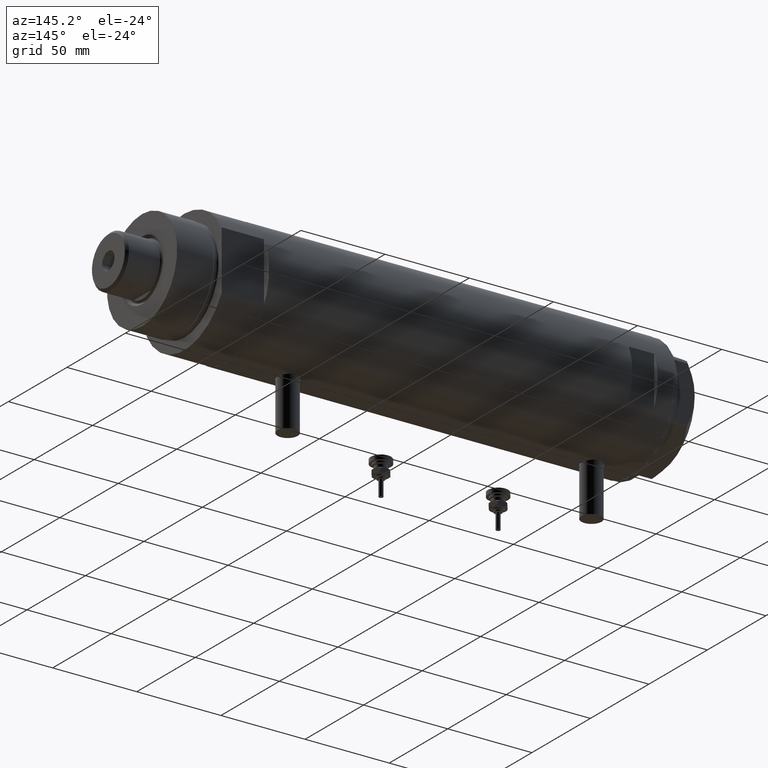
[diagram: clean part render]
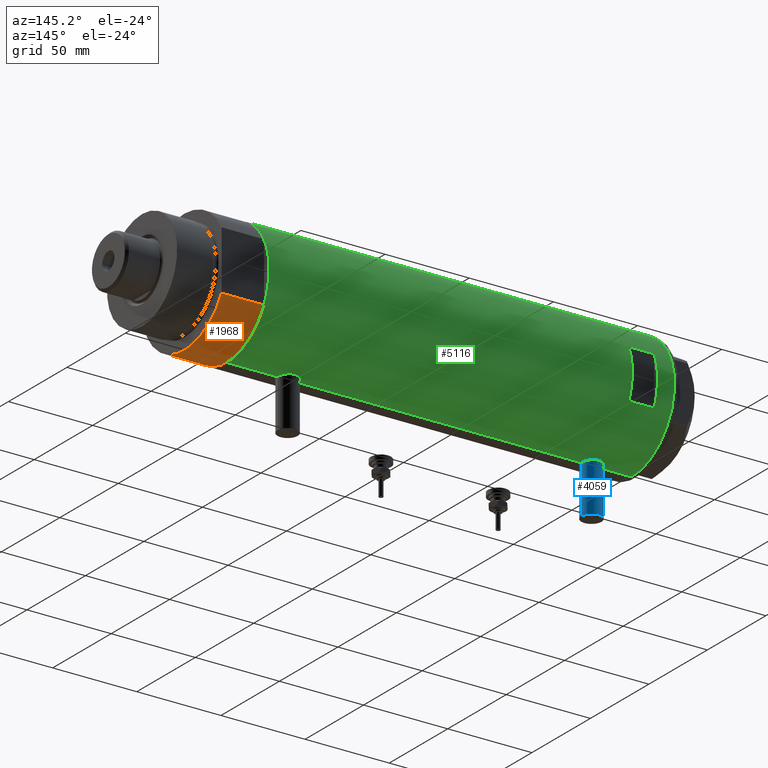
[diagram: same view with three faces highlighted in distinct colors, each labeled with its STEP entity id]
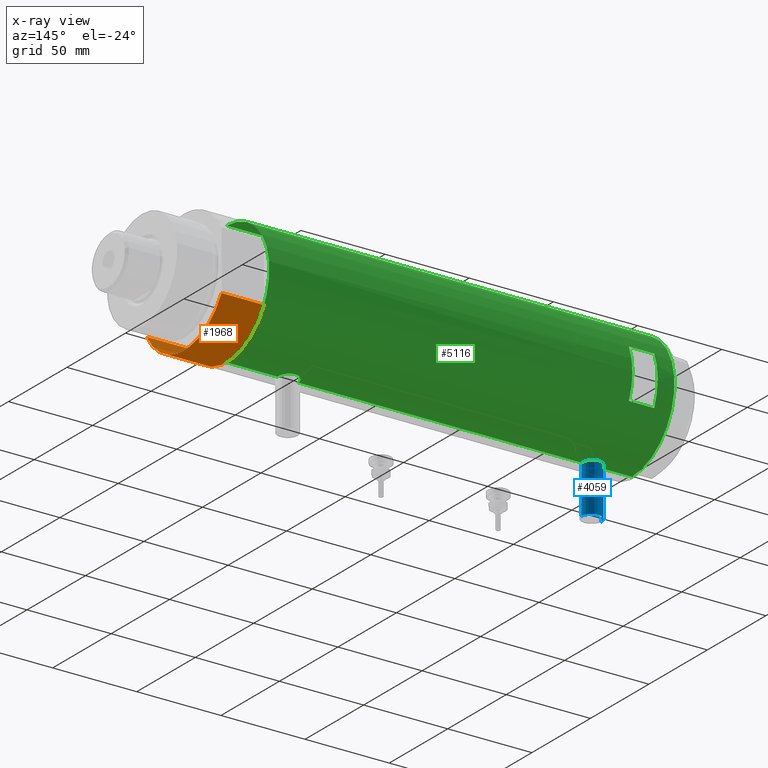
[diagram: x-ray of the same camera — body ghosted, the three highlighted faces saturated]
A machine part, auxiliary view with three faces highlighted in distinct colors.
The next image is the same camera in x-ray (body ghosted, the three faces saturated) — at least one of them is partly hidden behind the body in this view.
Their STEP definitions:

[orange] entity #1968 — the highlighted cylindrical surface (partial cylindrical patch) has radius 36.5 mm, axis along (-1, -0, 0).
#426 = CARTESIAN_POINT ( 'NONE',  ( 17.55704986607943496, 32.00000000000000000, 0.000000000000000000 ) ) ;
#515 = CIRCLE ( 'NONE', #5792, 36.50000000000000000 ) ;
#668 = DIRECTION ( 'NONE',  ( 0.000000000000000000, 0.000000000000000000, 1.000000000000000000 ) ) ;
#741 = CIRCLE ( 'NONE', #1317, 36.50000000000000000 ) ;
#833 = ORIENTED_EDGE ( 'NONE', *, *, #1643, .T. ) ;
#921 = DIRECTION ( 'NONE',  ( -1.000000000000000000, 0.000000000000000000, 0.000000000000000000 ) ) ;
#987 = ORIENTED_EDGE ( 'NONE', *, *, #4280, .F. ) ;
#1015 = CARTESIAN_POINT ( 'NONE',  ( 0.000000000000000000, 0.000000000000000000, 25.19999999999999929 ) ) ;
#1256 = CARTESIAN_POINT ( 'NONE',  ( 17.55704986607943496, 32.00000000000000000, 25.19999999999999929 ) ) ;
#1317 = AXIS2_PLACEMENT_3D ( 'NONE', #4790, #4340, #2538 ) ;
#1345 = VECTOR ( 'NONE', #3434, 1000.000000000000000 ) ;
#1384 = CARTESIAN_POINT ( 'NONE',  ( 17.55704986607943141, -32.00000000000000000, 0.000000000000000000 ) ) ;
#1431 = EDGE_CURVE ( 'NONE', #4666, #2586, #3854, .T. ) ;
#1549 = CARTESIAN_POINT ( 'NONE',  ( 17.55704986607943141, -32.00000000000000000, 0.000000000000000000 ) ) ;
#1643 = EDGE_CURVE ( 'NONE', #4467, #5441, #2777, .T. ) ;
#1968 = ADVANCED_FACE ( 'NONE', ( #2352 ), #3751, .T. ) ;
#2053 = CARTESIAN_POINT ( 'NONE',  ( 0.000000000000000000, 0.000000000000000000, 25.19999999999999929 ) ) ;
#2352 = FACE_OUTER_BOUND ( 'NONE', #3290, .T. ) ;
#2538 = DIRECTION ( 'NONE',  ( 1.000000000000000000, 0.000000000000000000, 0.000000000000000000 ) ) ;
#2586 = VERTEX_POINT ( 'NONE', #4260 ) ;
#2777 = LINE ( 'NONE', #4192, #3086 ) ;
#2868 = DIRECTION ( 'NONE',  ( -0.000000000000000000, -0.000000000000000000, -1.000000000000000000 ) ) ;
#3086 = VECTOR ( 'NONE', #3245, 1000.000000000000000 ) ;
#3175 = ORIENTED_EDGE ( 'NONE', *, *, #1431, .F. ) ;
#3245 = DIRECTION ( 'NONE',  ( -0.000000000000000000, -0.000000000000000000, 1.000000000000000000 ) ) ;
#3290 = EDGE_LOOP ( 'NONE', ( #987, #3175, #5038, #833 ) ) ;
#3434 = DIRECTION ( 'NONE',  ( -0.000000000000000000, -0.000000000000000000, 1.000000000000000000 ) ) ;
#3751 = CYLINDRICAL_SURFACE ( 'NONE', #4446, 36.50000000000000000 ) ;
#3854 = LINE ( 'NONE', #1549, #1345 ) ;
#3960 = DIRECTION ( 'NONE',  ( 1.000000000000000000, 0.000000000000000000, 0.000000000000000000 ) ) ;
#4192 = CARTESIAN_POINT ( 'NONE',  ( 17.55704986607943141, 32.00000000000000000, 0.000000000000000000 ) ) ;
#4260 = CARTESIAN_POINT ( 'NONE',  ( 17.55704986607943496, -32.00000000000000000, 25.19999999999999929 ) ) ;
#4280 = EDGE_CURVE ( 'NONE', #2586, #5441, #515, .T. ) ;
#4340 = DIRECTION ( 'NONE',  ( 0.000000000000000000, 0.000000000000000000, 1.000000000000000000 ) ) ;
#4446 = AXIS2_PLACEMENT_3D ( 'NONE', #1015, #2868, #921 ) ;
#4467 = VERTEX_POINT ( 'NONE', #426 ) ;
#4666 = VERTEX_POINT ( 'NONE', #1384 ) ;
#4790 = CARTESIAN_POINT ( 'NONE',  ( 0.000000000000000000, 0.000000000000000000, 0.000000000000000000 ) ) ;
#5038 = ORIENTED_EDGE ( 'NONE', *, *, #5224, .T. ) ;
#5224 = EDGE_CURVE ( 'NONE', #4666, #4467, #741, .T. ) ;
#5441 = VERTEX_POINT ( 'NONE', #1256 ) ;
#5792 = AXIS2_PLACEMENT_3D ( 'NONE', #2053, #668, #3960 ) ;

[blue] entity #4059 — the highlighted cylindrical surface (edge-blend (fillet) strip) has radius 6 mm, axis along (0, 0, 1).
#122 = AXIS2_PLACEMENT_3D ( 'NONE', #4680, #4118, #1914 ) ;
#435 = CARTESIAN_POINT ( 'NONE',  ( -35.29999999999999716, 0.000000000000000000, 96.40000000000001990 ) ) ;
#554 = FACE_OUTER_BOUND ( 'NONE', #2370, .T. ) ;
#581 = CYLINDRICAL_SURFACE ( 'NONE', #1282, 5.999999999999991118 ) ;
#649 = VECTOR ( 'NONE', #795, 1000.000000000000000 ) ;
#795 = DIRECTION ( 'NONE',  ( 1.000000000000000000, -0.000000000000000000, -0.000000000000000000 ) ) ;
#1075 = VERTEX_POINT ( 'NONE', #2434 ) ;
#1282 = AXIS2_PLACEMENT_3D ( 'NONE', #1502, #2376, #5658 ) ;
#1459 = DIRECTION ( 'NONE',  ( 1.000000000000000000, -0.000000000000000000, -0.000000000000000000 ) ) ;
#1502 = CARTESIAN_POINT ( 'NONE',  ( -65.00000000000000000, 0.000000000000000000, 96.40000000000001990 ) ) ;
#1600 = DIRECTION ( 'NONE',  ( 0.000000000000000000, 0.000000000000000000, 1.000000000000000000 ) ) ;
#1863 = EDGE_CURVE ( 'NONE', #3031, #5256, #5016, .T. ) ;
#1904 = CARTESIAN_POINT ( 'NONE',  ( -65.00000000000000000, 7.347880794884104945E-16, 102.4000000000000057 ) ) ;
#1913 = CARTESIAN_POINT ( 'NONE',  ( -65.00000000000000000, 0.000000000000000000, 90.40000000000001990 ) ) ;
#1914 = DIRECTION ( 'NONE',  ( 0.000000000000000000, 0.000000000000000000, 1.000000000000000000 ) ) ;
#2356 = LINE ( 'NONE', #1904, #3201 ) ;
#2370 = EDGE_LOOP ( 'NONE', ( #3324, #3695, #2830, #4101 ) ) ;
#2376 = DIRECTION ( 'NONE',  ( 1.000000000000000000, -0.000000000000000000, -0.000000000000000000 ) ) ;
#2410 = EDGE_CURVE ( 'NONE', #1075, #4561, #4163, .T. ) ;
#2434 = CARTESIAN_POINT ( 'NONE',  ( -65.00000000000000000, 7.347880794884101001E-16, 102.4000000000000057 ) ) ;
#2830 = ORIENTED_EDGE ( 'NONE', *, *, #1863, .T. ) ;
#3031 = VERTEX_POINT ( 'NONE', #3415 ) ;
#3201 = VECTOR ( 'NONE', #1459, 1000.000000000000000 ) ;
#3324 = ORIENTED_EDGE ( 'NONE', *, *, #2410, .F. ) ;
#3415 = CARTESIAN_POINT ( 'NONE',  ( -35.29999999999999716, 7.347880794884101001E-16, 102.4000000000000057 ) ) ;
#3570 = AXIS2_PLACEMENT_3D ( 'NONE', #435, #5823, #1600 ) ;
#3695 = ORIENTED_EDGE ( 'NONE', *, *, #3725, .T. ) ;
#3725 = EDGE_CURVE ( 'NONE', #1075, #3031, #2356, .T. ) ;
#3962 = CARTESIAN_POINT ( 'NONE',  ( -65.00000000000000000, 0.000000000000000000, 90.40000000000001990 ) ) ;
#4059 = ADVANCED_FACE ( 'NONE', ( #554 ), #581, .T. ) ;
#4101 = ORIENTED_EDGE ( 'NONE', *, *, #5721, .F. ) ;
#4118 = DIRECTION ( 'NONE',  ( -1.000000000000000000, 0.000000000000000000, 0.000000000000000000 ) ) ;
#4163 = CIRCLE ( 'NONE', #122, 5.999999999999991118 ) ;
#4561 = VERTEX_POINT ( 'NONE', #1913 ) ;
#4680 = CARTESIAN_POINT ( 'NONE',  ( -65.00000000000000000, 0.000000000000000000, 96.40000000000001990 ) ) ;
#4809 = LINE ( 'NONE', #3962, #649 ) ;
#5016 = CIRCLE ( 'NONE', #3570, 5.999999999999991118 ) ;
#5256 = VERTEX_POINT ( 'NONE', #5288 ) ;
#5288 = CARTESIAN_POINT ( 'NONE',  ( -35.29999999999999716, 0.000000000000000000, 90.40000000000001990 ) ) ;
#5658 = DIRECTION ( 'NONE',  ( 0.000000000000000000, 0.000000000000000000, -1.000000000000000000 ) ) ;
#5721 = EDGE_CURVE ( 'NONE', #4561, #5256, #4809, .T. ) ;
#5823 = DIRECTION ( 'NONE',  ( -1.000000000000000000, 0.000000000000000000, 0.000000000000000000 ) ) ;

[green] entity #5116 — the highlighted cylindrical surface (partial cylindrical patch) has radius 36.5 mm, axis along (-1, -0, 0).
#9 = VERTEX_POINT ( 'NONE', #5105 ) ;
#41 = CARTESIAN_POINT ( 'NONE',  ( 36.49999999999999289, 0.4961820988516178477, 105.3999999999999915 ) ) ;
#56 = ORIENTED_EDGE ( 'NONE', *, *, #5534, .F. ) ;
#57 = VERTEX_POINT ( 'NONE', #4747 ) ;
#102 = CARTESIAN_POINT ( 'NONE',  ( 35.29999999999999716, 9.282241108697837362, -120.4000000000000057 ) ) ;
#126 = CYLINDRICAL_SURFACE ( 'NONE', #1498, 36.50000000000000000 ) ;
#137 = CARTESIAN_POINT ( 'NONE',  ( -36.44504802628534179, 2.011764947064737630, -78.17906355091480464 ) ) ;
#138 = EDGE_CURVE ( 'NONE', #2147, #1916, #1220, .T. ) ;
#174 = VECTOR ( 'NONE', #3388, 1000.000000000000000 ) ;
#202 = ORIENTED_EDGE ( 'NONE', *, *, #2631, .F. ) ;
#222 = VECTOR ( 'NONE', #2783, 1000.000000000000000 ) ;
#234 = CARTESIAN_POINT ( 'NONE',  ( -36.26643311080166399, 4.132772529026635944, 101.1061940526988536 ) ) ;
#241 = CARTESIAN_POINT ( 'NONE',  ( 35.29999999999999716, 9.282241108697837362, 91.67978495245237980 ) ) ;
#264 = CARTESIAN_POINT ( 'NONE',  ( -36.36688032967140316, 3.133094607697482825, 101.8233643263751276 ) ) ;
#278 = CARTESIAN_POINT ( 'NONE',  ( -36.06690560274405044, 5.606949625760674571, -86.86885923958932665 ) ) ;
#291 = CARTESIAN_POINT ( 'NONE',  ( -36.46598788992680085, 1.625721481788714895, 90.35127953286163915 ) ) ;
#324 = CARTESIAN_POINT ( 'NONE',  ( -36.01524716445113938, 5.931039972055515364, 94.38669268135348034 ) ) ;
#340 = CARTESIAN_POINT ( 'NONE',  ( -36.50000000000000000, 4.469960816887838430E-15, -120.4000000000000057 ) ) ;
#351 = EDGE_CURVE ( 'NONE', #1733, #2236, #3948, .T. ) ;
#374 = CARTESIAN_POINT ( 'NONE',  ( 36.29420020483473053, 3.877527130731370342, -84.82098974400292946 ) ) ;
#387 = CARTESIAN_POINT ( 'NONE',  ( 35.69321149401851301, 7.633476302278308978, 101.8646307216643976 ) ) ;
#390 = CARTESIAN_POINT ( 'NONE',  ( -36.35033317675380005, 3.306376218664579536, -89.40770719416052259 ) ) ;
#392 = CARTESIAN_POINT ( 'NONE',  ( 36.50000000000000000, 4.344614706140975428E-19, 105.4000000000000057 ) ) ;
#398 = ORIENTED_EDGE ( 'NONE', *, *, #1209, .F. ) ;
#409 = CARTESIAN_POINT ( 'NONE',  ( 36.45853166336080875, 1.985123042546145022, -85.45162670417735740 ) ) ;
#419 = CIRCLE ( 'NONE', #1100, 36.50000000000000000 ) ;
#439 = ORIENTED_EDGE ( 'NONE', *, *, #1601, .F. ) ;
#446 = CARTESIAN_POINT ( 'NONE',  ( 0.000000000000000000, 0.000000000000000000, -120.4000000000000057 ) ) ;
#478 = CARTESIAN_POINT ( 'NONE',  ( 35.72794581931695745, 7.469526493268205058, 102.0533979672826490 ) ) ;
#499 = VECTOR ( 'NONE', #3666, 1000.000000000000000 ) ;
#500 = B_SPLINE_CURVE_WITH_KNOTS ( 'NONE', 3,
 ( #4003, #1226, #409, #2207, #4581, #374, #3089, #861, #5883, #3608, #5821, #2709, #1253, #2270, #5431, #4933, #3148, #4991 ),
 .UNSPECIFIED., .F., .F.,
 ( 4, 2, 2, 2, 2, 2, 2, 2, 4 ),
 ( 1.734723475976807094E-18, 0.002973648994175672518, 0.003717061242719596394, 0.004460473491263520704, 0.005947297988351386670, 0.007434122485439251769, 0.008920946982527117736, 0.01040777147961498283, 0.01189459597670284793 ),
 .UNSPECIFIED. ) ;
#502 = DIRECTION ( 'NONE',  ( 0.000000000000000000, 0.000000000000000000, 1.000000000000000000 ) ) ;
#513 = LINE ( 'NONE', #966, #222 ) ;
#526 = LINE ( 'NONE', #1865, #707 ) ;
#569 = EDGE_CURVE ( 'NONE', #5772, #1131, #500, .T. ) ;
#578 = CARTESIAN_POINT ( 'NONE',  ( 36.34264078466112124, 3.418717136061403927, -66.18950965959250254 ) ) ;
#587 = CARTESIAN_POINT ( 'NONE',  ( -36.50000000000000000, 4.469960816887838430E-15, -120.4000000000000057 ) ) ;
#604 = CARTESIAN_POINT ( 'NONE',  ( 35.72860827204725354, 7.471059959301281417, 88.73474849525594266 ) ) ;
#611 = CARTESIAN_POINT ( 'NONE',  ( 35.29999999999999716, 9.282241108697837362, -71.87978495245236843 ) ) ;
#616 = CARTESIAN_POINT ( 'NONE',  ( 35.29999999999999716, 9.282241108697837362, -71.87978495245236843 ) ) ;
#640 = CARTESIAN_POINT ( 'NONE',  ( 35.29999999999999716, 9.282241108697837362, -79.32021504754763441 ) ) ;
#647 = CARTESIAN_POINT ( 'NONE',  ( -36.50000000000000000, 4.469960816887838430E-15, -120.4000000000000057 ) ) ;
#665 = CARTESIAN_POINT ( 'NONE',  ( 36.44688397185920081, 1.983417953489138741, -65.79550042351749539 ) ) ;
#692 = ORIENTED_EDGE ( 'NONE', *, *, #3229, .T. ) ;
#707 = VECTOR ( 'NONE', #2867, 1000.000000000000000 ) ;
#717 = CARTESIAN_POINT ( 'NONE',  ( -36.44504802628534179, 2.011764947064737630, 102.3209364490851954 ) ) ;
#720 = EDGE_CURVE ( 'NONE', #4771, #2738, #5115, .T. ) ;
#729 = CARTESIAN_POINT ( 'NONE',  ( -36.16126303108062956, 4.966520032693302333, -80.28358772254716769 ) ) ;
#743 = CARTESIAN_POINT ( 'NONE',  ( -36.09617453667821252, 5.415318599347967776, 99.52706642672912096 ) ) ;
#759 = CARTESIAN_POINT ( 'NONE',  ( -35.96805604460922723, 6.209309709790234777, -84.92112758268174844 ) ) ;
#774 = CARTESIAN_POINT ( 'NONE',  ( -36.46462099658055678, 1.618684470865507041, 102.4402439702484742 ) ) ;
#790 = CARTESIAN_POINT ( 'NONE',  ( -36.09617453667821252, 5.415318599347967776, -80.97293357327090746 ) ) ;
#798 = ORIENTED_EDGE ( 'NONE', *, *, #4867, .F. ) ;
#821 = CARTESIAN_POINT ( 'NONE',  ( -36.03936508729894683, 5.782103729777505308, -81.70129467396205314 ) ) ;
#847 = CARTESIAN_POINT ( 'NONE',  ( 36.34264078466112124, 3.418717136061403927, 104.8104903404075543 ) ) ;
#849 = CARTESIAN_POINT ( 'NONE',  ( -36.39522946636253664, 2.769519034821242176, -89.70663923731271439 ) ) ;
#861 = CARTESIAN_POINT ( 'NONE',  ( 36.18948008481302026, 4.772042575486208804, -84.40177631243157919 ) ) ;
#966 = CARTESIAN_POINT ( 'NONE',  ( 35.29999999999999716, 9.282241108697837362, -120.4000000000000057 ) ) ;
#1047 = EDGE_CURVE ( 'NONE', #3606, #5666, #4362, .T. ) ;
#1087 = CARTESIAN_POINT ( 'NONE',  ( 35.40502660484481368, 8.876998817796907915, 90.76901275928764790 ) ) ;
#1100 = AXIS2_PLACEMENT_3D ( 'NONE', #5922, #5831, #5892 ) ;
#1117 = CARTESIAN_POINT ( 'NONE',  ( 35.69321149401851301, 7.633476302278308978, -69.13536927833558821 ) ) ;
#1131 = VERTEX_POINT ( 'NONE', #640 ) ;
#1136 = CARTESIAN_POINT ( 'NONE',  ( -36.09643313249890184, 5.413601294342275771, 93.26992226608146552 ) ) ;
#1169 = CARTESIAN_POINT ( 'NONE',  ( -36.35033317675380005, 3.306376218664579536, 91.09229280583950583 ) ) ;
#1186 = CARTESIAN_POINT ( 'NONE',  ( -36.26643311080166399, 4.132772529026635944, -79.39380594730118901 ) ) ;
#1201 = CARTESIAN_POINT ( 'NONE',  ( -36.30181775639987052, 3.813582387016785091, 91.43163942425562141 ) ) ;
#1207 = B_SPLINE_CURVE_WITH_KNOTS ( 'NONE', 3,
 ( #1586, #3443, #2865, #4719, #4266, #137, #4532, #4052, #5778, #5866, #1186, #1727, #729, #4021, #790, #1701, #821, #2663, #4866, #2604, #3560, #2549, #4414, #759, #2142, #3959, #5387, #278, #2634, #2111, #1242, #4475, #2194, #5418, #390, #1270, #849, #3074, #3593, #2227, #4087, #1647, #3106 ),
 .UNSPECIFIED., .F., .F.,
 ( 4, 2, 2, 2, 2, 2, 2, 2, 1, 2, 2, 2, 2, 2, 2, 2, 2, 2, 2, 2, 2, 4 ),
 ( 1.558294008431693624E-18, 0.001223527801214140684, 0.001835291701821213954, 0.002447055602428288307, 0.003670583403642434413, 0.004894111204856580084, 0.006117639006070725756, 0.006729402906677815072, 0.007341166807284903520, 0.007952930707891993703, 0.008564694608499082151, 0.009788222409713260783, 0.01101175021092743941, 0.01223527801214161631, 0.01284704191274868568, 0.01345880581335575504, 0.01468233361456989725, 0.01590586141578403945, 0.01651762531639110881, 0.01712938921699818165, 0.01835291701821230650, 0.01957644481942643136 ),
 .UNSPECIFIED. ) ;
#1209 = EDGE_CURVE ( 'NONE', #9, #2116, #1207, .T. ) ;
#1220 = B_SPLINE_CURVE_WITH_KNOTS ( 'NONE', 3,
 ( #611, #5715, #3414, #1117, #2863, #3899, #4717, #2401, #4264, #5217, #2927, #1584, #578, #5270, #2459, #665, #4355, #5186, #1922, #2017 ),
 .UNSPECIFIED., .F., .F.,
 ( 4, 2, 2, 2, 2, 2, 2, 2, 2, 4 ),
 ( 0.000000000000000000, 0.002977391289382919342, 0.003721739111728640179, 0.004466086934074362316, 0.005954782578765775367, 0.007443478223457188417, 0.008932173868148601467, 0.009676521690494316666, 0.01042086951284003013, 0.01190956515753145012 ),
 .UNSPECIFIED. ) ;
#1226 = CARTESIAN_POINT ( 'NONE',  ( 36.50000000000000711, 1.005842003469123336, -85.59999999999999432 ) ) ;
#1228 = CARTESIAN_POINT ( 'NONE',  ( -36.06690560274405044, 5.606949625760674571, 93.63114076041070177 ) ) ;
#1242 = CARTESIAN_POINT ( 'NONE',  ( -36.16083474549355259, 4.969527450313384165, -87.91205319122751405 ) ) ;
#1253 = CARTESIAN_POINT ( 'NONE',  ( 35.72860827204725354, 7.471059959301281417, -82.26525150474411419 ) ) ;
#1270 = CARTESIAN_POINT ( 'NONE',  ( -36.36587679577595367, 3.131448301962863834, -89.51282465573618197 ) ) ;
#1279 = VECTOR ( 'NONE', #502, 1000.000000000000000 ) ;
#1310 = DIRECTION ( 'NONE',  ( 0.000000000000000000, 0.000000000000000000, 1.000000000000000000 ) ) ;
#1348 = CARTESIAN_POINT ( 'NONE',  ( 36.18937351723702278, 4.773052864917646687, 104.2013599311884064 ) ) ;
#1370 = VECTOR ( 'NONE', #1310, 1000.000000000000000 ) ;
#1414 = ORIENTED_EDGE ( 'NONE', *, *, #138, .F. ) ;
#1495 = CARTESIAN_POINT ( 'NONE',  ( 35.93456089024232369, 6.410413305453381838, 87.70914036795856816 ) ) ;
#1498 = AXIS2_PLACEMENT_3D ( 'NONE', #446, #2302, #2276 ) ;
#1546 = VECTOR ( 'NONE', #3194, 1000.000000000000000 ) ;
#1578 = CARTESIAN_POINT ( 'NONE',  ( 36.50000000000000711, 1.005842003469123336, 85.40000000000003411 ) ) ;
#1584 = CARTESIAN_POINT ( 'NONE',  ( 36.29611582693038940, 3.878758190381173421, -66.36955010900452123 ) ) ;
#1586 = CARTESIAN_POINT ( 'NONE',  ( -36.50000000000000000, 1.603939656238031057E-15, -77.85000000000000853 ) ) ;
#1601 = EDGE_CURVE ( 'NONE', #3119, #3258, #5577, .T. ) ;
#1606 = CARTESIAN_POINT ( 'NONE',  ( 0.000000000000000000, 0.000000000000000000, 110.3999999999999915 ) ) ;
#1616 = CARTESIAN_POINT ( 'NONE',  ( -36.50000000000000000, 4.469960493350315609E-15, -90.35000000000000853 ) ) ;
#1647 = CARTESIAN_POINT ( 'NONE',  ( -36.49999999999999289, 0.4083036190459308212, -90.34999999999998010 ) ) ;
#1651 = CARTESIAN_POINT ( 'NONE',  ( -14.49137674618942917, 33.50000000000000000, 95.40000000000000568 ) ) ;
#1660 = CARTESIAN_POINT ( 'NONE',  ( -36.49297130294515057, 0.8204796224394291793, 102.6093169221773564 ) ) ;
#1688 = CARTESIAN_POINT ( 'NONE',  ( -36.50000000000000000, 1.603939656238031057E-15, 102.6500000000000199 ) ) ;
#1701 = CARTESIAN_POINT ( 'NONE',  ( -36.06675137892952421, 5.607935153446978127, -81.33318173991246169 ) ) ;
#1727 = CARTESIAN_POINT ( 'NONE',  ( -36.19624103943463922, 4.708090268046848159, -79.96938778553864324 ) ) ;
#1733 = VERTEX_POINT ( 'NONE', #3216 ) ;
#1744 = ORIENTED_EDGE ( 'NONE', *, *, #569, .F. ) ;
#1747 = CARTESIAN_POINT ( 'NONE',  ( 36.50000000000000000, 0.000000000000000000, -120.4000000000000057 ) ) ;
#1797 = ORIENTED_EDGE ( 'NONE', *, *, #4043, .F. ) ;
#1826 = VERTEX_POINT ( 'NONE', #2447 ) ;
#1851 = CARTESIAN_POINT ( 'NONE',  ( 35.29999999999999716, 9.282241108697837362, 99.12021504754764578 ) ) ;
#1865 = CARTESIAN_POINT ( 'NONE',  ( -14.49137674618942739, 33.50000000000000000, -120.4000000000000057 ) ) ;
#1879 = CARTESIAN_POINT ( 'NONE',  ( 36.44688397185920081, 1.983417953489138741, 105.2044995764825757 ) ) ;
#1896 = CARTESIAN_POINT ( 'NONE',  ( 36.50000000000000000, 4.344614706140975428E-19, -65.60000000000000853 ) ) ;
#1900 = EDGE_CURVE ( 'NONE', #4771, #3649, #2127, .T. ) ;
#1916 = VERTEX_POINT ( 'NONE', #1896 ) ;
#1922 = CARTESIAN_POINT ( 'NONE',  ( 36.49999999999999289, 0.4961820988516178477, -65.59999999999999432 ) ) ;
#1949 = CARTESIAN_POINT ( 'NONE',  ( 36.50000000000000000, 0.000000000000000000, 85.40000000000001990 ) ) ;
#1970 = B_SPLINE_CURVE_WITH_KNOTS ( 'NONE', 3,
 ( #1949, #1578, #4828, #2069, #3464, #2858, #3802, #4711, #2396, #5624, #1495, #3347, #604, #3375, #5212, #1087, #3525, #2136 ),
 .UNSPECIFIED., .F., .F.,
 ( 4, 2, 2, 2, 2, 2, 2, 2, 4 ),
 ( 1.734723475976807094E-18, 0.002973648994175672518, 0.003717061242719596394, 0.004460473491263520704, 0.005947297988351386670, 0.007434122485439251769, 0.008920946982527117736, 0.01040777147961498283, 0.01189459597670284793 ),
 .UNSPECIFIED. ) ;
#1993 = ORIENTED_EDGE ( 'NONE', *, *, #720, .T. ) ;
#2017 = CARTESIAN_POINT ( 'NONE',  ( 36.50000000000000000, 4.344614706140975428E-19, -65.60000000000000853 ) ) ;
#2024 = AXIS2_PLACEMENT_3D ( 'NONE', #1606, #5828, #2626 ) ;
#2062 = EDGE_LOOP ( 'NONE', ( #2505, #3895, #398, #5695, #3114, #1993, #798, #2573, #5457, #4613, #202, #3743, #1414, #692, #1744, #56 ) ) ;
#2069 = CARTESIAN_POINT ( 'NONE',  ( 36.36225053217120973, 3.177096004138049601, 85.91483975524022298 ) ) ;
#2093 = CARTESIAN_POINT ( 'NONE',  ( -36.39522946636253664, 2.769519034821242176, 90.79336076268728561 ) ) ;
#2102 = CARTESIAN_POINT ( 'NONE',  ( -36.50000000000000000, 4.469960816887838430E-15, 120.4000000000000057 ) ) ;
#2111 = CARTESIAN_POINT ( 'NONE',  ( -36.11206433103227198, 5.308658295084048184, -87.40484648040978755 ) ) ;
#2116 = VERTEX_POINT ( 'NONE', #1616 ) ;
#2127 = B_SPLINE_CURVE_WITH_KNOTS ( 'NONE', 3,
 ( #1688, #5940, #1660, #3912, #774, #717, #2592, #3545, #264, #4935, #234, #4124, #2265, #4820, #743, #4879, #5259, #2537, #5344, #2158, #5320, #4400, #4461, #3061, #4490, #324, #5287, #1228, #1136, #3976, #3034, #2973, #3492, #1201, #1169, #2566, #2093, #2507, #4428, #291, #2128, #2766, #4183 ),
 .UNSPECIFIED., .F., .F.,
 ( 4, 2, 2, 2, 2, 2, 2, 2, 1, 2, 2, 2, 2, 2, 2, 2, 2, 2, 2, 2, 2, 4 ),
 ( 1.558294008431693624E-18, 0.001223527801214140684, 0.001835291701821213954, 0.002447055602428288307, 0.003670583403642434413, 0.004894111204856580084, 0.006117639006070725756, 0.006729402906677815072, 0.007341166807284903520, 0.007952930707891993703, 0.008564694608499082151, 0.009788222409713260783, 0.01101175021092743941, 0.01223527801214161631, 0.01284704191274868568, 0.01345880581335575504, 0.01468233361456989725, 0.01590586141578403945, 0.01651762531639110881, 0.01712938921699818165, 0.01835291701821230650, 0.01957644481942643136 ),
 .UNSPECIFIED. ) ;
#2128 = CARTESIAN_POINT ( 'NONE',  ( -36.49292802938585822, 0.8230716655928924652, 90.19093061246485377 ) ) ;
#2136 = CARTESIAN_POINT ( 'NONE',  ( 35.29999999999999716, 9.282241108697837362, 91.67978495245237980 ) ) ;
#2142 = CARTESIAN_POINT ( 'NONE',  ( -35.99530513653993324, 6.049346314076207598, -85.72332583035837672 ) ) ;
#2147 = VERTEX_POINT ( 'NONE', #616 ) ;
#2158 = CARTESIAN_POINT ( 'NONE',  ( -35.98846897517730525, 6.089479646546502423, 97.82234891546525546 ) ) ;
#2170 = LINE ( 'NONE', #3073, #1546 ) ;
#2173 = LINE ( 'NONE', #102, #4832 ) ;
#2194 = CARTESIAN_POINT ( 'NONE',  ( -36.26695135241003953, 4.128455078791301247, -88.81037591644739848 ) ) ;
#2207 = CARTESIAN_POINT ( 'NONE',  ( 36.36225053217120973, 3.177096004138049601, -85.08516024475976280 ) ) ;
#2225 = CARTESIAN_POINT ( 'NONE',  ( 36.45954139109321801, 1.735915671103595681, 105.2513678114701179 ) ) ;
#2227 = CARTESIAN_POINT ( 'NONE',  ( -36.46598788992680085, 1.625721481788714895, -90.14872046713837506 ) ) ;
#2236 = VERTEX_POINT ( 'NONE', #392 ) ;
#2265 = CARTESIAN_POINT ( 'NONE',  ( -36.16126303108062956, 4.966520032693302333, 100.2164122774528323 ) ) ;
#2270 = CARTESIAN_POINT ( 'NONE',  ( 35.59366931936805400, 8.089554397885871495, -81.49927319087814226 ) ) ;
#2276 = DIRECTION ( 'NONE',  ( 1.000000000000000000, 0.000000000000000000, 0.000000000000000000 ) ) ;
#2289 = DIRECTION ( 'NONE',  ( 0.000000000000000000, 1.000000000000000000, -4.562560375171875891E-15 ) ) ;
#2302 = DIRECTION ( 'NONE',  ( 0.000000000000000000, 0.000000000000000000, 1.000000000000000000 ) ) ;
#2339 = CARTESIAN_POINT ( 'NONE',  ( 35.79715675463678792, 7.130463293899340194, 102.4155558410599696 ) ) ;
#2381 = EDGE_CURVE ( 'NONE', #1733, #2560, #2173, .T. ) ;
#2396 = CARTESIAN_POINT ( 'NONE',  ( 36.13018480315372472, 5.199168368309159405, 86.84353501791949270 ) ) ;
#2401 = CARTESIAN_POINT ( 'NONE',  ( 35.93435287561198521, 6.411571491280768420, -67.91011355077158385 ) ) ;
#2447 = CARTESIAN_POINT ( 'NONE',  ( 36.50000000000000000, 0.000000000000000000, 85.40000000000001990 ) ) ;
#2459 = CARTESIAN_POINT ( 'NONE',  ( 36.41717583764486932, 2.469534783404761402, -65.90651988824329521 ) ) ;
#2472 = EDGE_CURVE ( 'NONE', #3258, #3606, #3321, .T. ) ;
#2505 = ORIENTED_EDGE ( 'NONE', *, *, #3205, .T. ) ;
#2507 = CARTESIAN_POINT ( 'NONE',  ( -36.40902375114221456, 2.582415566883930591, 90.70478308530314848 ) ) ;
#2537 = CARTESIAN_POINT ( 'NONE',  ( -36.01679413914729366, 5.919813138266330377, 98.41499691047042120 ) ) ;
#2549 = CARTESIAN_POINT ( 'NONE',  ( -35.96094343308265451, 6.249843792257633091, -83.68912889655432252 ) ) ;
#2560 = VERTEX_POINT ( 'NONE', #241 ) ;
#2566 = CARTESIAN_POINT ( 'NONE',  ( -36.36587679577595367, 3.131448301962863834, 90.98717534426380382 ) ) ;
#2573 = ORIENTED_EDGE ( 'NONE', *, *, #3529, .F. ) ;
#2588 = EDGE_LOOP ( 'NONE', ( #1797, #5711, #3351, #439 ) ) ;
#2592 = CARTESIAN_POINT ( 'NONE',  ( -36.43371204571226230, 2.206934156026287841, 102.2509728167099752 ) ) ;
#2604 = CARTESIAN_POINT ( 'NONE',  ( -35.98846897517730525, 6.089479646546502423, -82.67765108453481560 ) ) ;
#2626 = DIRECTION ( 'NONE',  ( 1.000000000000000000, 1.776356839400250465E-15, 0.000000000000000000 ) ) ;
#2631 = EDGE_CURVE ( 'NONE', #1826, #2560, #1970, .T. ) ;
#2634 = CARTESIAN_POINT ( 'NONE',  ( -36.09643313249890184, 5.413601294342275771, -87.23007773391852027 ) ) ;
#2663 = CARTESIAN_POINT ( 'NONE',  ( -36.01679413914729366, 5.919813138266330377, -82.08500308952964986 ) ) ;
#2709 = CARTESIAN_POINT ( 'NONE',  ( 35.79766710091575987, 7.135341284989891619, -82.62350520560903533 ) ) ;
#2720 = CARTESIAN_POINT ( 'NONE',  ( 36.50000000000000000, 4.344614706140975428E-19, 105.4000000000000057 ) ) ;
#2731 = CARTESIAN_POINT ( 'NONE',  ( 0.000000000000000000, 0.000000000000000000, 95.40000000000014779 ) ) ;
#2738 = VERTEX_POINT ( 'NONE', #2102 ) ;
#2740 = CARTESIAN_POINT ( 'NONE',  ( 36.50000000000000000, 0.000000000000000000, -120.4000000000000057 ) ) ;
#2756 = CARTESIAN_POINT ( 'NONE',  ( 14.49137674618942739, 33.50000000000000000, -120.4000000000000057 ) ) ;
#2766 = CARTESIAN_POINT ( 'NONE',  ( -36.49999999999999289, 0.4083036190459308212, 90.14999999999997726 ) ) ;
#2783 = DIRECTION ( 'NONE',  ( -0.000000000000000000, -0.000000000000000000, -1.000000000000000000 ) ) ;
#2858 = CARTESIAN_POINT ( 'NONE',  ( 36.29420020483473053, 3.877527130731370342, 86.17901025599708476 ) ) ;
#2863 = CARTESIAN_POINT ( 'NONE',  ( 35.72794581931695745, 7.469526493268205058, -68.94660203271739363 ) ) ;
#2865 = CARTESIAN_POINT ( 'NONE',  ( -36.49297130294515057, 0.8204796224394291793, -77.89068307782268619 ) ) ;
#2867 = DIRECTION ( 'NONE',  ( 0.000000000000000000, 0.000000000000000000, 1.000000000000000000 ) ) ;
#2880 = FACE_BOUND ( 'NONE', #2588, .T. ) ;
#2886 = CARTESIAN_POINT ( 'NONE',  ( 36.50000000000000000, 0.000000000000000000, -120.4000000000000057 ) ) ;
#2927 = CARTESIAN_POINT ( 'NONE',  ( 36.18937351723702278, 4.773052864917646687, -66.79864006881156513 ) ) ;
#2933 = LINE ( 'NONE', #3330, #174 ) ;
#2973 = CARTESIAN_POINT ( 'NONE',  ( -36.19597718496778072, 4.710322426433902976, 92.27148389237986237 ) ) ;
#3034 = CARTESIAN_POINT ( 'NONE',  ( -36.16083474549355259, 4.969527450313384165, 92.58794680877254279 ) ) ;
#3038 = EDGE_CURVE ( 'NONE', #9, #3649, #2170, .T. ) ;
#3061 = CARTESIAN_POINT ( 'NONE',  ( -35.96805604460922723, 6.209309709790234777, 95.57887241731832262 ) ) ;
#3073 = CARTESIAN_POINT ( 'NONE',  ( -36.50000000000000000, 4.469960816887838430E-15, -120.4000000000000057 ) ) ;
#3074 = CARTESIAN_POINT ( 'NONE',  ( -36.40902375114221456, 2.582415566883930591, -89.79521691469687994 ) ) ;
#3089 = CARTESIAN_POINT ( 'NONE',  ( 36.26917563968160607, 4.104523505324181087, -84.72215988367473471 ) ) ;
#3106 = CARTESIAN_POINT ( 'NONE',  ( -36.50000000000000000, 4.469960493350315609E-15, -90.35000000000000853 ) ) ;
#3114 = ORIENTED_EDGE ( 'NONE', *, *, #1900, .F. ) ;
#3119 = VERTEX_POINT ( 'NONE', #4086 ) ;
#3148 = CARTESIAN_POINT ( 'NONE',  ( 35.34894515018992678, 9.096104616284845790, -79.78464083466539591 ) ) ;
#3164 = CARTESIAN_POINT ( 'NONE',  ( 36.12877841835537396, 5.208882251161925936, 103.9505316479029347 ) ) ;
#3193 = CARTESIAN_POINT ( 'NONE',  ( 36.40008489419980720, 2.709263960908029123, 105.0291810459639095 ) ) ;
#3194 = DIRECTION ( 'NONE',  ( 0.000000000000000000, 0.000000000000000000, 1.000000000000000000 ) ) ;
#3205 = EDGE_CURVE ( 'NONE', #4526, #3658, #4079, .T. ) ;
#3216 = CARTESIAN_POINT ( 'NONE',  ( 35.29999999999999716, 9.282241108697837362, 99.12021504754764578 ) ) ;
#3229 = EDGE_CURVE ( 'NONE', #2147, #1131, #513, .T. ) ;
#3258 = VERTEX_POINT ( 'NONE', #4620 ) ;
#3308 = VECTOR ( 'NONE', #4144, 1000.000000000000000 ) ;
#3321 = LINE ( 'NONE', #2756, #5207 ) ;
#3330 = CARTESIAN_POINT ( 'NONE',  ( 36.50000000000000000, 0.000000000000000000, -120.4000000000000057 ) ) ;
#3347 = CARTESIAN_POINT ( 'NONE',  ( 35.79766710091575987, 7.135341284989891619, 88.37649479439097888 ) ) ;
#3351 = ORIENTED_EDGE ( 'NONE', *, *, #2472, .F. ) ;
#3375 = CARTESIAN_POINT ( 'NONE',  ( 35.59366931936805400, 8.089554397885871495, 89.50072680912188616 ) ) ;
#3388 = DIRECTION ( 'NONE',  ( 0.000000000000000000, 0.000000000000000000, 1.000000000000000000 ) ) ;
#3414 = CARTESIAN_POINT ( 'NONE',  ( 35.52347503888660896, 8.410566959990466884, -70.10046032740659427 ) ) ;
#3443 = CARTESIAN_POINT ( 'NONE',  ( -36.50000000000000000, 0.4137727629436737664, -77.84999999999999432 ) ) ;
#3464 = CARTESIAN_POINT ( 'NONE',  ( 36.34070350304396868, 3.414301401755543974, 85.99763782624094688 ) ) ;
#3492 = CARTESIAN_POINT ( 'NONE',  ( -36.26695135241003953, 4.128455078791301247, 91.68962408355257310 ) ) ;
#3525 = CARTESIAN_POINT ( 'NONE',  ( 35.34894515018992678, 9.096104616284845790, 91.21535916533457566 ) ) ;
#3529 = EDGE_CURVE ( 'NONE', #2236, #57, #3668, .T. ) ;
#3545 = CARTESIAN_POINT ( 'NONE',  ( -36.39638105034455151, 2.774378062517171006, 102.0154333269910296 ) ) ;
#3560 = CARTESIAN_POINT ( 'NONE',  ( -35.96793274302675059, 6.210029014836887740, -83.28305762320685801 ) ) ;
#3572 = EDGE_CURVE ( 'NONE', #1916, #1826, #5884, .T. ) ;
#3593 = CARTESIAN_POINT ( 'NONE',  ( -36.44628644024909647, 2.015372769639941275, -90.03028128013588116 ) ) ;
#3606 = VERTEX_POINT ( 'NONE', #4219 ) ;
#3608 = CARTESIAN_POINT ( 'NONE',  ( 36.00287854058830561, 6.017835360302999703, -83.60188117181724010 ) ) ;
#3618 = CARTESIAN_POINT ( 'NONE',  ( 35.83170458557578542, 6.955065627744199119, 102.5894167191246424 ) ) ;
#3649 = VERTEX_POINT ( 'NONE', #5196 ) ;
#3658 = VERTEX_POINT ( 'NONE', #647 ) ;
#3666 = DIRECTION ( 'NONE',  ( 0.000000000000000000, 0.000000000000000000, 1.000000000000000000 ) ) ;
#3668 = LINE ( 'NONE', #2740, #1279 ) ;
#3683 = DIRECTION ( 'NONE',  ( -0.000000000000000000, -0.000000000000000000, -1.000000000000000000 ) ) ;
#3743 = ORIENTED_EDGE ( 'NONE', *, *, #3572, .F. ) ;
#3749 = DIRECTION ( 'NONE',  ( 0.000000000000000000, 4.625929269271492422E-15, 1.000000000000000000 ) ) ;
#3767 = AXIS2_PLACEMENT_3D ( 'NONE', #2731, #3749, #2289 ) ;
#3802 = CARTESIAN_POINT ( 'NONE',  ( 36.26917563968160607, 4.104523505324181087, 86.27784011632525107 ) ) ;
#3895 = ORIENTED_EDGE ( 'NONE', *, *, #4315, .T. ) ;
#3899 = CARTESIAN_POINT ( 'NONE',  ( 35.79715675463678792, 7.130463293899340194, -68.58444415894004464 ) ) ;
#3912 = CARTESIAN_POINT ( 'NONE',  ( -36.47290054070997201, 1.420408912806973678, 102.4898698166001623 ) ) ;
#3948 = B_SPLINE_CURVE_WITH_KNOTS ( 'NONE', 3,
 ( #1851, #5097, #5476, #387, #478, #2339, #3618, #5926, #4567, #3164, #1348, #4197, #847, #3193, #5040, #1879, #2225, #4085, #41, #2720 ),
 .UNSPECIFIED., .F., .F.,
 ( 4, 2, 2, 2, 2, 2, 2, 2, 2, 4 ),
 ( 0.000000000000000000, 0.002977391289382919342, 0.003721739111728640179, 0.004466086934074362316, 0.005954782578765775367, 0.007443478223457188417, 0.008932173868148601467, 0.009676521690494316666, 0.01042086951284003013, 0.01190956515753145012 ),
 .UNSPECIFIED. ) ;
#3959 = CARTESIAN_POINT ( 'NONE',  ( -36.01524716445113938, 5.931039972055515364, -86.11330731864657650 ) ) ;
#3976 = CARTESIAN_POINT ( 'NONE',  ( -36.11206433103227198, 5.308658295084048184, 93.09515351959024088 ) ) ;
#4003 = CARTESIAN_POINT ( 'NONE',  ( 36.50000000000000000, 0.000000000000000000, -85.59999999999999432 ) ) ;
#4021 = CARTESIAN_POINT ( 'NONE',  ( -36.11199073531170001, 5.309184630646994307, -80.79587159233167881 ) ) ;
#4043 = EDGE_CURVE ( 'NONE', #5666, #3119, #526, .T. ) ;
#4052 = CARTESIAN_POINT ( 'NONE',  ( -36.39638105034455151, 2.774378062517171006, -78.48456667300897038 ) ) ;
#4079 = CIRCLE ( 'NONE', #4657, 36.50000000000000000 ) ;
#4085 = CARTESIAN_POINT ( 'NONE',  ( 36.48988646280794512, 0.9921857666168139023, 105.3632811513442249 ) ) ;
#4086 = CARTESIAN_POINT ( 'NONE',  ( -14.49137674618942739, 33.50000000000000000, 110.3999999999999915 ) ) ;
#4087 = CARTESIAN_POINT ( 'NONE',  ( -36.49292802938585822, 0.8230716655928924652, -90.30906938753511781 ) ) ;
#4124 = CARTESIAN_POINT ( 'NONE',  ( -36.19624103943463922, 4.708090268046848159, 100.5306122144613994 ) ) ;
#4144 = DIRECTION ( 'NONE',  ( 0.000000000000000000, 0.000000000000000000, 1.000000000000000000 ) ) ;
#4183 = CARTESIAN_POINT ( 'NONE',  ( -36.50000000000000000, 4.469960493350315609E-15, 90.15000000000000568 ) ) ;
#4197 = CARTESIAN_POINT ( 'NONE',  ( 36.29611582693038940, 3.878758190381173421, 104.6304498909955072 ) ) ;
#4219 = CARTESIAN_POINT ( 'NONE',  ( 14.49137674618942917, 33.50000000000000000, 95.40000000000000568 ) ) ;
#4252 = FACE_OUTER_BOUND ( 'NONE', #2062, .T. ) ;
#4257 = DIRECTION ( 'NONE',  ( 1.000000000000000000, 0.000000000000000000, 0.000000000000000000 ) ) ;
#4264 = CARTESIAN_POINT ( 'NONE',  ( 36.00145998247696610, 6.026272765084661032, -67.60449611787615254 ) ) ;
#4266 = CARTESIAN_POINT ( 'NONE',  ( -36.46462099658055678, 1.618684470865507041, -78.05975602975156846 ) ) ;
#4315 = EDGE_CURVE ( 'NONE', #3658, #2116, #5388, .T. ) ;
#4355 = CARTESIAN_POINT ( 'NONE',  ( 36.45954139109321801, 1.735915671103595681, -65.74863218852992475 ) ) ;
#4362 = CIRCLE ( 'NONE', #3767, 36.50000000000000000 ) ;
#4400 = CARTESIAN_POINT ( 'NONE',  ( -35.96094343308265451, 6.249843792257633091, 96.81087110344570590 ) ) ;
#4414 = CARTESIAN_POINT ( 'NONE',  ( -35.96088929326157313, 6.250155299092687855, -84.50610494763246550 ) ) ;
#4428 = CARTESIAN_POINT ( 'NONE',  ( -36.44628644024909647, 2.015372769639941275, 90.46971871986418989 ) ) ;
#4461 = CARTESIAN_POINT ( 'NONE',  ( -35.96088929326157313, 6.250155299092687855, 95.99389505236757714 ) ) ;
#4475 = CARTESIAN_POINT ( 'NONE',  ( -36.19597718496778072, 4.710322426433902976, -88.22851610762016605 ) ) ;
#4478 = CARTESIAN_POINT ( 'NONE',  ( 36.50000000000000000, 0.000000000000000000, -85.59999999999999432 ) ) ;
#4490 = CARTESIAN_POINT ( 'NONE',  ( -35.99530513653993324, 6.049346314076207598, 94.77667416964166591 ) ) ;
#4526 = VERTEX_POINT ( 'NONE', #2886 ) ;
#4532 = CARTESIAN_POINT ( 'NONE',  ( -36.43371204571226230, 2.206934156026287841, -78.24902718329002482 ) ) ;
#4567 = CARTESIAN_POINT ( 'NONE',  ( 36.00145998247696610, 6.026272765084661032, 103.3955038821238901 ) ) ;
#4581 = CARTESIAN_POINT ( 'NONE',  ( 36.34070350304396868, 3.414301401755543974, -85.00236217375905312 ) ) ;
#4613 = ORIENTED_EDGE ( 'NONE', *, *, #2381, .T. ) ;
#4620 = CARTESIAN_POINT ( 'NONE',  ( 14.49137674618942739, 33.50000000000000000, 110.3999999999999915 ) ) ;
#4657 = AXIS2_PLACEMENT_3D ( 'NONE', #5508, #5066, #4257 ) ;
#4711 = CARTESIAN_POINT ( 'NONE',  ( 36.18948008481302026, 4.772042575486208804, 86.59822368756844924 ) ) ;
#4717 = CARTESIAN_POINT ( 'NONE',  ( 35.83170458557578542, 6.955065627744199119, -68.41058328087537177 ) ) ;
#4719 = CARTESIAN_POINT ( 'NONE',  ( -36.47290054070997201, 1.420408912806973678, -78.01013018339985194 ) ) ;
#4747 = CARTESIAN_POINT ( 'NONE',  ( 36.50000000000000000, 0.000000000000000000, 120.4000000000000057 ) ) ;
#4771 = VERTEX_POINT ( 'NONE', #5326 ) ;
#4820 = CARTESIAN_POINT ( 'NONE',  ( -36.11199073531170001, 5.309184630646994307, 99.70412840766836382 ) ) ;
#4828 = CARTESIAN_POINT ( 'NONE',  ( 36.45853166336080875, 1.985123042546145022, 85.54837329582265681 ) ) ;
#4832 = VECTOR ( 'NONE', #3683, 1000.000000000000000 ) ;
#4866 = CARTESIAN_POINT ( 'NONE',  ( -35.99700617875953412, 6.038972911021586398, -82.47666814201681973 ) ) ;
#4867 = EDGE_CURVE ( 'NONE', #57, #2738, #419, .T. ) ;
#4879 = CARTESIAN_POINT ( 'NONE',  ( -36.06675137892952421, 5.607935153446978127, 99.16681826008760936 ) ) ;
#4933 = CARTESIAN_POINT ( 'NONE',  ( 35.40502660484481368, 8.876998817796907915, -80.23098724071233789 ) ) ;
#4935 = CARTESIAN_POINT ( 'NONE',  ( -36.30200038006936580, 3.811959488093743520, 101.3697210483601197 ) ) ;
#4991 = CARTESIAN_POINT ( 'NONE',  ( 35.29999999999999716, 9.282241108697837362, -79.32021504754763441 ) ) ;
#5040 = CARTESIAN_POINT ( 'NONE',  ( 36.41717583764486932, 2.469534783404761402, 105.0934801117567190 ) ) ;
#5066 = DIRECTION ( 'NONE',  ( 0.000000000000000000, 0.000000000000000000, 1.000000000000000000 ) ) ;
#5097 = CARTESIAN_POINT ( 'NONE',  ( 35.39804469700249001, 8.909380959553011792, 100.0505316448284532 ) ) ;
#5102 = DIRECTION ( 'NONE',  ( -0.000000000000000000, -0.000000000000000000, -1.000000000000000000 ) ) ;
#5105 = CARTESIAN_POINT ( 'NONE',  ( -36.50000000000000000, 1.603939656238031057E-15, -77.85000000000000853 ) ) ;
#5115 = LINE ( 'NONE', #587, #499 ) ;
#5116 = ADVANCED_FACE ( 'NONE', ( #2880, #4252 ), #126, .T. ) ;
#5186 = CARTESIAN_POINT ( 'NONE',  ( 36.48988646280794512, 0.9921857666168139023, -65.63671884865574668 ) ) ;
#5196 = CARTESIAN_POINT ( 'NONE',  ( -36.50000000000000000, 4.469960493350315609E-15, 90.15000000000000568 ) ) ;
#5207 = VECTOR ( 'NONE', #5102, 1000.000000000000000 ) ;
#5212 = CARTESIAN_POINT ( 'NONE',  ( 35.52737867031126484, 8.373910777960906771, 89.91139643282933491 ) ) ;
#5217 = CARTESIAN_POINT ( 'NONE',  ( 36.12877841835537396, 5.208882251161925936, -67.04946835209707956 ) ) ;
#5259 = CARTESIAN_POINT ( 'NONE',  ( -36.03936508729894683, 5.782103729777505308, 98.79870532603798949 ) ) ;
#5270 = CARTESIAN_POINT ( 'NONE',  ( 36.40008489419980720, 2.709263960908029123, -65.97081895403607632 ) ) ;
#5287 = CARTESIAN_POINT ( 'NONE',  ( -36.05296344941216091, 5.695624845616832133, 93.81845143463246472 ) ) ;
#5320 = CARTESIAN_POINT ( 'NONE',  ( -35.96793274302675059, 6.210029014836887740, 97.21694237679319883 ) ) ;
#5326 = CARTESIAN_POINT ( 'NONE',  ( -36.50000000000000000, 1.603939656238031057E-15, 102.6500000000000199 ) ) ;
#5344 = CARTESIAN_POINT ( 'NONE',  ( -35.99700617875953412, 6.038972911021586398, 98.02333185798320869 ) ) ;
#5387 = CARTESIAN_POINT ( 'NONE',  ( -36.05296344941216091, 5.695624845616832133, -86.68154856536754949 ) ) ;
#5388 = LINE ( 'NONE', #340, #3308 ) ;
#5418 = CARTESIAN_POINT ( 'NONE',  ( -36.30181775639987052, 3.813582387016785091, -89.06836057574435017 ) ) ;
#5431 = CARTESIAN_POINT ( 'NONE',  ( 35.52737867031126484, 8.373910777960906771, -81.08860356717065088 ) ) ;
#5457 = ORIENTED_EDGE ( 'NONE', *, *, #351, .F. ) ;
#5476 = CARTESIAN_POINT ( 'NONE',  ( 35.52347503888660896, 8.410566959990466884, 100.8995396725934057 ) ) ;
#5508 = CARTESIAN_POINT ( 'NONE',  ( 0.000000000000000000, 0.000000000000000000, -120.4000000000000057 ) ) ;
#5534 = EDGE_CURVE ( 'NONE', #4526, #5772, #2933, .T. ) ;
#5577 = CIRCLE ( 'NONE', #2024, 36.50000000000000000 ) ;
#5624 = CARTESIAN_POINT ( 'NONE',  ( 36.00287854058830561, 6.017835360302999703, 87.39811882818277411 ) ) ;
#5666 = VERTEX_POINT ( 'NONE', #1651 ) ;
#5695 = ORIENTED_EDGE ( 'NONE', *, *, #3038, .T. ) ;
#5711 = ORIENTED_EDGE ( 'NONE', *, *, #1047, .F. ) ;
#5715 = CARTESIAN_POINT ( 'NONE',  ( 35.39804469700249001, 8.909380959553011792, -70.94946835517158945 ) ) ;
#5772 = VERTEX_POINT ( 'NONE', #4478 ) ;
#5778 = CARTESIAN_POINT ( 'NONE',  ( -36.36688032967140316, 3.133094607697482825, -78.67663567362490085 ) ) ;
#5821 = CARTESIAN_POINT ( 'NONE',  ( 35.93456089024232369, 6.410413305453381838, -83.29085963204141763 ) ) ;
#5828 = DIRECTION ( 'NONE',  ( -0.000000000000000000, -0.000000000000000000, -1.000000000000000000 ) ) ;
#5831 = DIRECTION ( 'NONE',  ( 0.000000000000000000, 0.000000000000000000, 1.000000000000000000 ) ) ;
#5866 = CARTESIAN_POINT ( 'NONE',  ( -36.30200038006936580, 3.811959488093743520, -79.13027895163997982 ) ) ;
#5883 = CARTESIAN_POINT ( 'NONE',  ( 36.13018480315372472, 5.199168368309159405, -84.15646498208049309 ) ) ;
#5884 = LINE ( 'NONE', #1747, #1370 ) ;
#5892 = DIRECTION ( 'NONE',  ( 1.000000000000000000, 0.000000000000000000, 0.000000000000000000 ) ) ;
#5922 = CARTESIAN_POINT ( 'NONE',  ( 0.000000000000000000, 0.000000000000000000, 120.4000000000000057 ) ) ;
#5926 = CARTESIAN_POINT ( 'NONE',  ( 35.93435287561198521, 6.411571491280768420, 103.0898864492284304 ) ) ;
#5940 = CARTESIAN_POINT ( 'NONE',  ( -36.50000000000000000, 0.4137727629436737664, 102.6500000000000057 ) ) ;